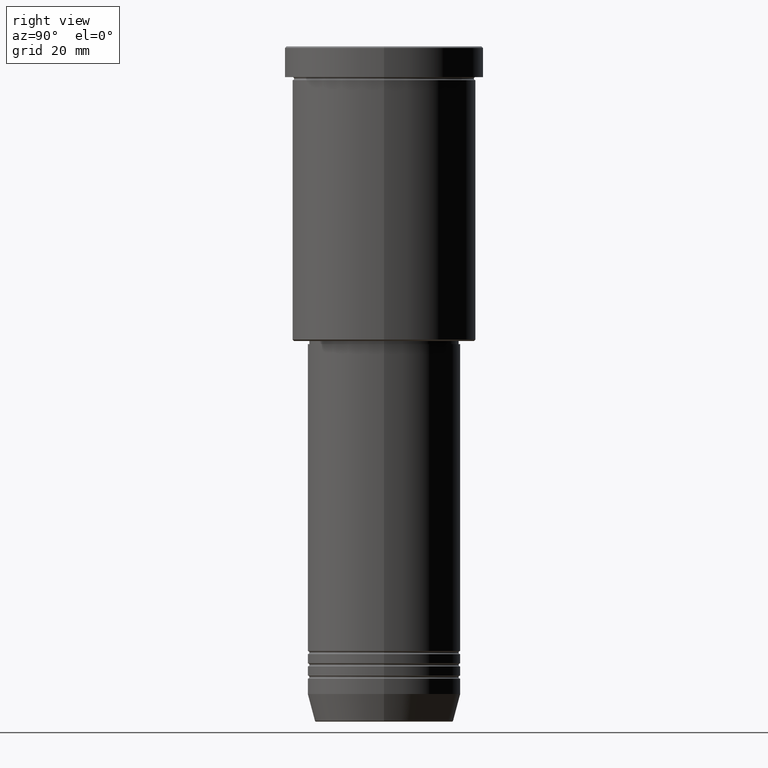
[diagram: clean part render]
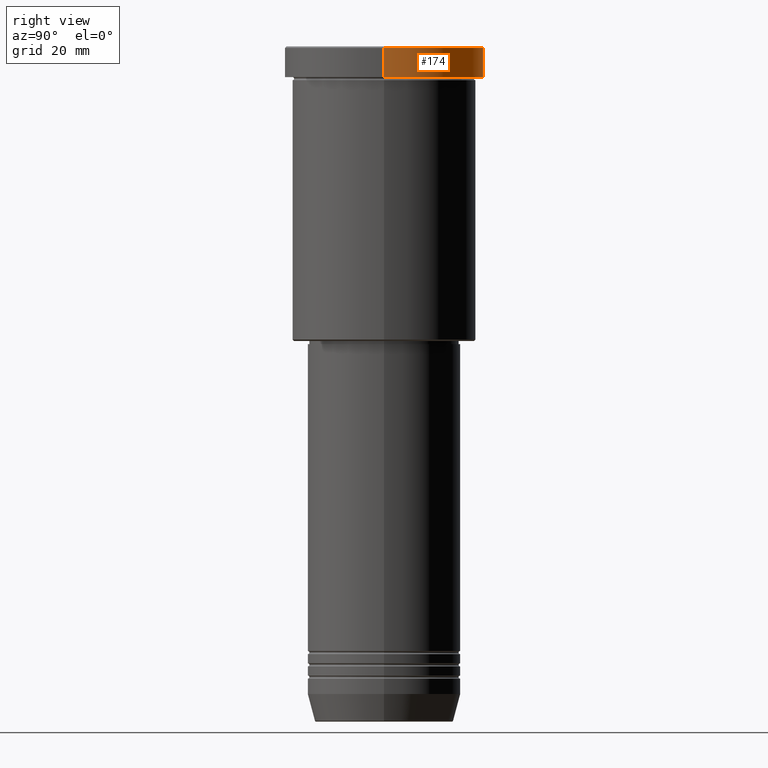
[diagram: same view with one face highlighted and labeled with its STEP entity id]
A machine part, right view. The second image highlights one B-rep face of the part: STEP entity #174.
In plain terms, the highlighted cylindrical surface (partial cylindrical patch) has radius 32.5 mm, axis along (-0, -0, 1).
Its self-contained STEP definition (entity closure, byte-faithful):
#3 = CARTESIAN_POINT ( 'NONE',  ( 32.50000000000000000, 0.000000000000000000, -0.4999999999999448219 ) ) ;
#40 = CARTESIAN_POINT ( 'NONE',  ( 32.50000000000000000, 0.000000000000000000, 0.000000000000000000 ) ) ;
#103 = AXIS2_PLACEMENT_3D ( 'NONE', #1082, #254, #981 ) ;
#136 = ORIENTED_EDGE ( 'NONE', *, *, #865, .T. ) ;
#174 = ADVANCED_FACE ( 'NONE', ( #289 ), #657, .T. ) ;
#177 = CARTESIAN_POINT ( 'NONE',  ( -32.50000000000000000, 3.980102097228898626E-15, -9.999999999999992895 ) ) ;
#253 = EDGE_CURVE ( 'NONE', #272, #325, #951, .T. ) ;
#254 = DIRECTION ( 'NONE',  ( 0.000000000000000000, 0.000000000000000000, -1.000000000000000000 ) ) ;
#272 = VERTEX_POINT ( 'NONE', #478 ) ;
#289 = FACE_OUTER_BOUND ( 'NONE', #420, .T. ) ;
#308 = VECTOR ( 'NONE', #398, 1000.000000000000000 ) ;
#319 = ORIENTED_EDGE ( 'NONE', *, *, #253, .F. ) ;
#325 = VERTEX_POINT ( 'NONE', #3 ) ;
#398 = DIRECTION ( 'NONE',  ( -0.000000000000000000, -0.000000000000000000, 1.000000000000000000 ) ) ;
#420 = EDGE_LOOP ( 'NONE', ( #136, #434, #733, #319 ) ) ;
#434 = ORIENTED_EDGE ( 'NONE', *, *, #774, .T. ) ;
#442 = AXIS2_PLACEMENT_3D ( 'NONE', #794, #789, #806 ) ;
#465 = CIRCLE ( 'NONE', #103, 32.50000000000000000 ) ;
#478 = CARTESIAN_POINT ( 'NONE',  ( 32.50000000000000000, 0.000000000000000000, -9.999999999999992895 ) ) ;
#480 = DIRECTION ( 'NONE',  ( -0.000000000000000000, -0.000000000000000000, 1.000000000000000000 ) ) ;
#540 = AXIS2_PLACEMENT_3D ( 'NONE', #1133, #1046, #677 ) ;
#572 = VERTEX_POINT ( 'NONE', #749 ) ;
#580 = VERTEX_POINT ( 'NONE', #177 ) ;
#657 = CYLINDRICAL_SURFACE ( 'NONE', #540, 32.50000000000000000 ) ;
#677 = DIRECTION ( 'NONE',  ( 1.000000000000000000, 0.000000000000000000, 0.000000000000000000 ) ) ;
#733 = ORIENTED_EDGE ( 'NONE', *, *, #935, .T. ) ;
#740 = VECTOR ( 'NONE', #480, 1000.000000000000000 ) ;
#749 = CARTESIAN_POINT ( 'NONE',  ( -32.50000000000000000, 3.980102097228898626E-15, -0.4999999999999448219 ) ) ;
#774 = EDGE_CURVE ( 'NONE', #580, #572, #1039, .T. ) ;
#783 = CIRCLE ( 'NONE', #442, 32.50000000000000000 ) ;
#789 = DIRECTION ( 'NONE',  ( -0.000000000000000000, -0.000000000000000000, 1.000000000000000000 ) ) ;
#794 = CARTESIAN_POINT ( 'NONE',  ( 0.000000000000000000, 0.000000000000000000, -9.999999999999992895 ) ) ;
#806 = DIRECTION ( 'NONE',  ( 1.000000000000000000, 0.000000000000000000, 0.000000000000000000 ) ) ;
#865 = EDGE_CURVE ( 'NONE', #272, #580, #783, .T. ) ;
#935 = EDGE_CURVE ( 'NONE', #572, #325, #465, .T. ) ;
#951 = LINE ( 'NONE', #40, #308 ) ;
#981 = DIRECTION ( 'NONE',  ( 1.000000000000000000, 0.000000000000000000, 0.000000000000000000 ) ) ;
#1039 = LINE ( 'NONE', #1129, #740 ) ;
#1046 = DIRECTION ( 'NONE',  ( -0.000000000000000000, -0.000000000000000000, 1.000000000000000000 ) ) ;
#1082 = CARTESIAN_POINT ( 'NONE',  ( 0.000000000000000000, 0.000000000000000000, -0.4999999999999448219 ) ) ;
#1129 = CARTESIAN_POINT ( 'NONE',  ( -32.50000000000000000, 3.980102097228898626E-15, 0.000000000000000000 ) ) ;
#1133 = CARTESIAN_POINT ( 'NONE',  ( 0.000000000000000000, 0.000000000000000000, 0.000000000000000000 ) ) ;